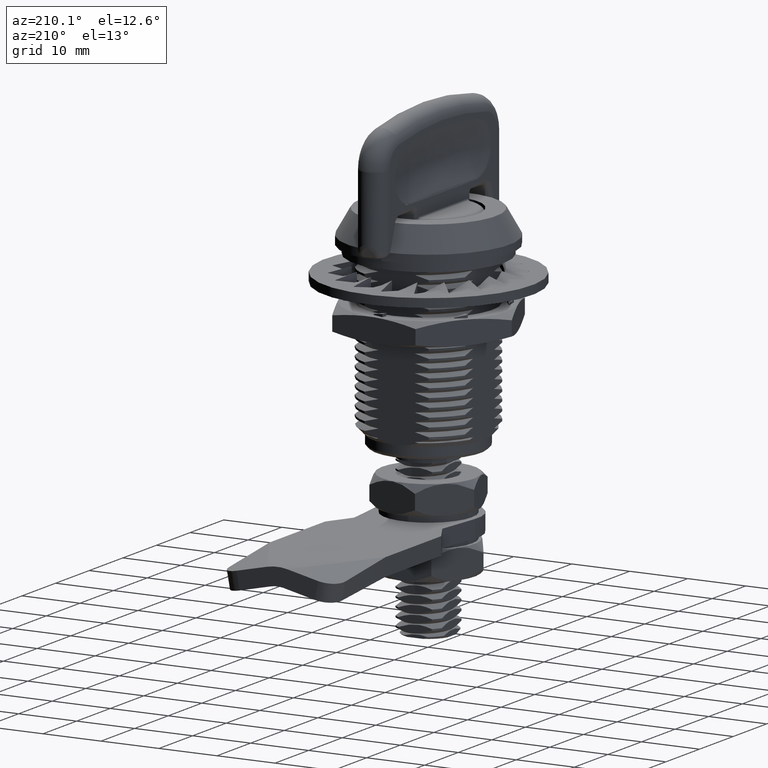
[diagram: clean part render]
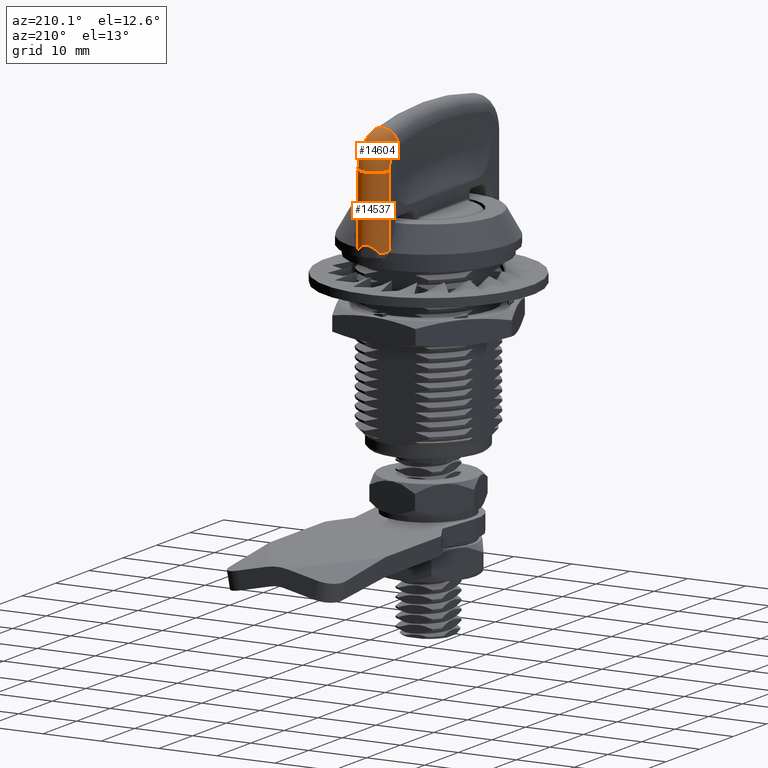
[diagram: same view with one multi-face feature highlighted, each face labeled with its STEP entity id]
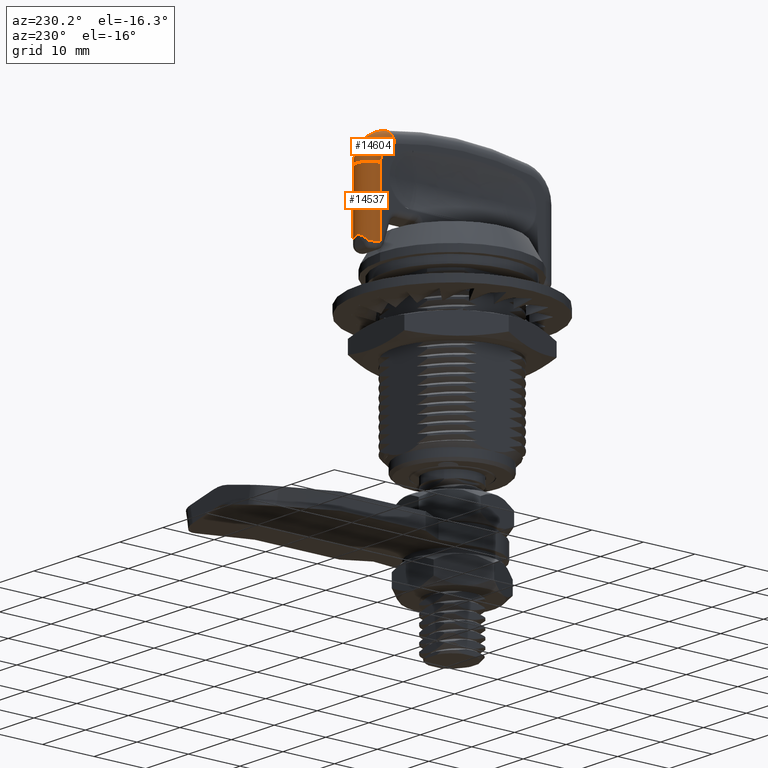
[diagram: same view with one multi-face feature highlighted, each face labeled with its STEP entity id]
A machine part, auxiliary view. The highlighted faces form ONE feature: a constant-radius fillet chain: 2 tangent blend faces with common blend radius 2.5 mm. The faces share edges in the B-rep.
A second angle (auxiliary view) of the same feature is appended — it is thin or edge-on in the first view.
Their STEP definitions:
[1] entity #14537 (Cylinder):
#1203=B_SPLINE_CURVE_WITH_KNOTS('',3,(#64390,#64391,#64392,#64393,#64394,
#64395,#64396),.UNSPECIFIED.,.F.,.F.,(4,1,1,1,4),(0.,0.267466078022516,
0.507587798485736,0.743473486123171,0.999999860373655),.UNSPECIFIED.);
#1205=B_SPLINE_CURVE_WITH_KNOTS('',3,(#64436,#64437,#64438,#64439,#64440,
#64441,#64442,#64443),.UNSPECIFIED.,.F.,.F.,(4,2,2,4),(0.,0.353250011507601,
0.683221391702949,1.),.UNSPECIFIED.);
#1206=B_SPLINE_CURVE_WITH_KNOTS('',3,(#64450,#64451,#64452,#64453,#64454,
#64455,#64456,#64457,#64458,#64459,#64460,#64461,#64462,#64463,#64464,#64465,
#64466,#64467,#64468,#64469,#64470,#64471,#64472,#64473,#64474,#64475,#64476,
#64477,#64478,#64479,#64480,#64481,#64482,#64483,#64484,#64485,#64486,#64487,
#64488,#64489,#64490,#64491,#64492,#64493,#64494,#64495,#64496,#64497,#64498,
#64499,#64500,#64501,#64502,#64503,#64504,#64505,#64506,#64507,#64508,#64509,
#64510,#64511,#64512,#64513,#64514,#64515,#64516,#64517,#64518,#64519,#64520,
#64521,#64522,#64523,#64524,#64525,#64526,#64527,#64528,#64529,#64530,#64531,
#64532,#64533,#64534,#64535,#64536,#64537,#64538,#64539,#64540,#64541,#64542,
#64543,#64544,#64545,#64546,#64547,#64548,#64549,#64550,#64551,#64552,#64553,
#64554,#64555,#64556,#64557),.UNSPECIFIED.,.F.,.F.,(4,2,2,2,2,2,2,2,2,2,
2,2,2,2,2,2,2,2,2,2,2,2,2,2,2,2,2,2,2,2,2,2,2,2,2,2,2,2,2,2,2,2,2,2,2,2,
2,2,2,2,2,2,2,4),(9.15408468364065E-8,0.023589347725002,0.0494026267857934,
0.0598260240815998,0.0802582647346693,0.102759069972841,0.1111111111111,
0.127028875435708,0.154037006365039,0.158223293277651,0.183864705645506,
0.207086906540861,0.20950611801336,0.2222222222222,0.245163361976176,0.266698992011257,
0.286829974445639,0.302671505568516,0.320536830970461,0.3333333333333,0.354119640601923,
0.372788190873707,0.381653037795957,0.398616254622046,0.415178897183282,
0.431496665771749,0.4444444444444,0.449364892352417,0.467357926019317,0.486261513227136,
0.506275635583453,0.519296355281918,0.54006281530764,0.5555555555556,0.579574163328535,
0.595456375305091,0.622871558627128,0.653641368031901,0.6666666666667,0.684048360101475,
0.707480714520556,0.731673585204199,0.757783631865874,0.7777777777778,0.782558108001469,
0.813436217876795,0.849032724989778,0.866781088202546,0.8888888888889,0.914919504198518,
0.936959603227853,0.968479781058255,0.997206507725537,0.999999958888649),
 .UNSPECIFIED.);
#1883=CYLINDRICAL_SURFACE('',#15323,2.5);
#2235=LINE('',#60510,#2914);
#2265=LINE('',#64445,#2944);
#2914=VECTOR('',#16492,12.2602306417664);
#2944=VECTOR('',#16722,12.260231471843);
#3840=FACE_OUTER_BOUND('',#4735,.T.);
#4735=EDGE_LOOP('',(#11290,#11291,#11292,#11293,#11294,#11295,#11296,#11297));
#5374=CIRCLE('',#15324,2.5);
#5375=CIRCLE('',#15325,2.5);
#5376=CIRCLE('',#15326,2.5);
#6100=VERTEX_POINT('',#60507);
#6101=VERTEX_POINT('',#60509);
#6213=VERTEX_POINT('',#64389);
#6215=VERTEX_POINT('',#64434);
#6216=VERTEX_POINT('',#64435);
#6217=VERTEX_POINT('',#64444);
#6218=VERTEX_POINT('',#64447);
#6219=VERTEX_POINT('',#64449);
#7858=EDGE_CURVE('',#6100,#6101,#2235,.T.);
#8030=EDGE_CURVE('',#6213,#6100,#1203,.T.);
#8033=EDGE_CURVE('',#6215,#6216,#1205,.T.);
#8034=EDGE_CURVE('',#6217,#6215,#2265,.T.);
#8035=EDGE_CURVE('',#6217,#6101,#5374,.T.);
#8036=EDGE_CURVE('',#6213,#6218,#5375,.T.);
#8037=EDGE_CURVE('',#6219,#6218,#1206,.T.);
#8038=EDGE_CURVE('',#6219,#6216,#5376,.T.);
#11290=ORIENTED_EDGE('',*,*,#8033,.F.);
#11291=ORIENTED_EDGE('',*,*,#8034,.F.);
#11292=ORIENTED_EDGE('',*,*,#8035,.T.);
#11293=ORIENTED_EDGE('',*,*,#7858,.F.);
#11294=ORIENTED_EDGE('',*,*,#8030,.F.);
#11295=ORIENTED_EDGE('',*,*,#8036,.T.);
#11296=ORIENTED_EDGE('',*,*,#8037,.F.);
#11297=ORIENTED_EDGE('',*,*,#8038,.T.);
#14537=ADVANCED_FACE('',(#3840),#1883,.T.);
#15323=AXIS2_PLACEMENT_3D('',#64433,#16720,#16721);
#15324=AXIS2_PLACEMENT_3D('',#64446,#16723,#16724);
#15325=AXIS2_PLACEMENT_3D('',#64448,#16725,#16726);
#15326=AXIS2_PLACEMENT_3D('',#64558,#16727,#16728);
#16492=DIRECTION('',(6.932877299588E-14,1.,-1.376887484708E-8));
#16720=DIRECTION('center_axis',(0.,1.,0.));
#16721=DIRECTION('ref_axis',(1.,0.,0.));
#16722=DIRECTION('',(2.403324643406E-13,-0.999999999999998,6.02866038983999E-8));
#16723=DIRECTION('center_axis',(0.,-1.,0.));
#16724=DIRECTION('ref_axis',(-1.,0.,1.320530174098E-9));
#16725=DIRECTION('center_axis',(0.,1.,0.));
#16726=DIRECTION('ref_axis',(0.978500863578061,0.,-0.206242721027892));
#16727=DIRECTION('center_axis',(0.,1.,0.));
#16728=DIRECTION('ref_axis',(-0.73137249196487,0.,-0.681978209327172));
#60507=CARTESIAN_POINT('',(2.49999999999924,34.2071972157575,-15.9999999551664));
#60509=CARTESIAN_POINT('',(2.49999999999995,46.4674278575239,-16.0000000038298));
#60510=CARTESIAN_POINT('',(2.499999999999,34.20719713052,-15.99999983885));
#64389=CARTESIAN_POINT('',(2.44625216013355,34.09999977029,-16.5156067969301));
#64390=CARTESIAN_POINT('Ctrl Pts',(2.44625216013336,34.09999954065,-16.5156067969301));
#64391=CARTESIAN_POINT('Ctrl Pts',(2.45653159603408,34.100000666675,-16.4668346166695));
#64392=CARTESIAN_POINT('Ctrl Pts',(2.47320006172738,34.1048919613841,-16.3738947529339));
#64393=CARTESIAN_POINT('Ctrl Pts',(2.48942109526228,34.1257203630037,-16.2409356722502));
#64394=CARTESIAN_POINT('Ctrl Pts',(2.49831290473731,34.1586633015962,-16.1158794679632));
#64395=CARTESIAN_POINT('Ctrl Pts',(2.49999949047634,34.1892023527903,-16.0380830411879));
#64396=CARTESIAN_POINT('Ctrl Pts',(2.49999999999879,34.2071971011366,-15.9999999010355));
#64433=CARTESIAN_POINT('Origin',(0.,-66.25569097812,-16.));
#64434=CARTESIAN_POINT('',(-2.49999999999595,34.2071963875237,-15.9999994998946));
#64435=CARTESIAN_POINT('',(-2.44625755656909,34.0999992101149,-16.515581193153));
#64436=CARTESIAN_POINT('Ctrl Pts',(-2.49999999998963,34.20719529803,-15.99999925867));
#64437=CARTESIAN_POINT('Ctrl Pts',(-2.49999940017764,34.182432171283,-16.0524065855158));
#64438=CARTESIAN_POINT('Ctrl Pts',(-2.49831752914386,34.1616133749237,-16.1095098631786));
#64439=CARTESIAN_POINT('Ctrl Pts',(-2.49046698420624,34.1298803367765,-16.2252184185283));
#64440=CARTESIAN_POINT('Ctrl Pts',(-2.48460130144107,34.1184038130913,-16.2834768236474));
#64441=CARTESIAN_POINT('Ctrl Pts',(-2.46848690339756,34.1036167543794,-16.3998414132646));
#64442=CARTESIAN_POINT('Ctrl Pts',(-2.45842279576721,34.0999980882414,-16.4578606059541));
#64443=CARTESIAN_POINT('Ctrl Pts',(-2.44625755654642,34.09999842031,-16.5155811931634));
#64444=CARTESIAN_POINT('',(-2.5,46.4674278593667,-15.9999999988995));
#64445=CARTESIAN_POINT('',(-2.5,46.46742786977,-15.9999999978));
#64446=CARTESIAN_POINT('Origin',(0.,46.46742785872,-16.));
#64447=CARTESIAN_POINT('',(1.82843176818156,34.0999996874892,-17.7049449460578));
#64448=CARTESIAN_POINT('Origin',(0.,34.1,-16.));
#64449=CARTESIAN_POINT('',(-1.82843188443403,34.0999992651982,-17.7049448213777));
#64450=CARTESIAN_POINT('Ctrl Pts',(-1.82843185312607,34.0999992229563,-17.7049448549657));
#64451=CARTESIAN_POINT('Ctrl Pts',(-1.79618100044585,34.1499256807666,-17.7395315960906));
#64452=CARTESIAN_POINT('Ctrl Pts',(-1.76366082623709,34.1980977243727,-17.7724403714806));
#64453=CARTESIAN_POINT('Ctrl Pts',(-1.69534022832455,34.2950641824103,-17.8380069521786));
#64454=CARTESIAN_POINT('Ctrl Pts',(-1.65951843021595,34.3434884281454,-17.8703482994829));
#64455=CARTESIAN_POINT('Ctrl Pts',(-1.60940719957267,34.4081120174142,-17.9131565192714));
#64456=CARTESIAN_POINT('Ctrl Pts',(-1.59501360813476,34.4263113450516,-17.9251687924651));
#64457=CARTESIAN_POINT('Ctrl Pts',(-1.55252044649863,34.4790053574949,-17.9598467675131));
#64458=CARTESIAN_POINT('Ctrl Pts',(-1.52452928172394,34.5123664175234,-17.9816684629367));
#64459=CARTESIAN_POINT('Ctrl Pts',(-1.46624192175416,34.57909370547,-18.025238062312));
#64460=CARTESIAN_POINT('Ctrl Pts',(-1.43599873678348,34.6121181720915,-18.0467542501261));
#64461=CARTESIAN_POINT('Ctrl Pts',(-1.39519611787389,34.6546136913553,-18.0745135007482));
#64462=CARTESIAN_POINT('Ctrl Pts',(-1.38421800919696,34.6658375263621,-18.081852699031));
#64463=CARTESIAN_POINT('Ctrl Pts',(-1.35254411941864,34.6976274214802,-18.1026750733079));
#64464=CARTESIAN_POINT('Ctrl Pts',(-1.3320111389709,34.7174350918389,-18.1157300007085));
#64465=CARTESIAN_POINT('Ctrl Pts',(-1.27734119916767,34.768332523668,-18.1494259950836));
#64466=CARTESIAN_POINT('Ctrl Pts',(-1.24369324947295,34.7976639858512,-18.1690192448796));
#64467=CARTESIAN_POINT('Ctrl Pts',(-1.20564936017273,34.8289941790397,-18.1900784628377));
#64468=CARTESIAN_POINT('Ctrl Pts',(-1.20056084432676,34.8331456925215,-18.1928718630846));
#64469=CARTESIAN_POINT('Ctrl Pts',(-1.16442394062836,34.8623609436313,-18.2125478590416));
#64470=CARTESIAN_POINT('Ctrl Pts',(-1.13399158145596,34.885558076164,-18.2282667074463));
#64471=CARTESIAN_POINT('Ctrl Pts',(-1.07704368632367,34.9269284044276,-18.2562993719204));
#64472=CARTESIAN_POINT('Ctrl Pts',(-1.05042949139633,34.9453697434607,-18.2687942662791));
#64473=CARTESIAN_POINT('Ctrl Pts',(-1.02141834976795,34.9647329314965,-18.2818224202511));
#64474=CARTESIAN_POINT('Ctrl Pts',(-1.0186848581832,34.9665499753322,-18.2830440396347));
#64475=CARTESIAN_POINT('Ctrl Pts',(-1.00160514578169,34.9778586279533,-18.2906404735326));
#64476=CARTESIAN_POINT('Ctrl Pts',(-0.987352161219896,34.9870976703046,
-18.2968180086156));
#64477=CARTESIAN_POINT('Ctrl Pts',(-0.947567085978325,35.0123838285752,
-18.3136310921625));
#64478=CARTESIAN_POINT('Ctrl Pts',(-0.922235264366391,35.0278310831264,
-18.3238373650671));
#64479=CARTESIAN_POINT('Ctrl Pts',(-0.873073842272901,35.0564983646098,
-18.3427318224241));
#64480=CARTESIAN_POINT('Ctrl Pts',(-0.849247225340689,35.0697976149091,
-18.3514745029414));
#64481=CARTESIAN_POINT('Ctrl Pts',(-0.802570002946643,35.0946135157014,
-18.3677947861684));
#64482=CARTESIAN_POINT('Ctrl Pts',(-0.77975692388344,35.1061902147824,-18.375411182089));
#64483=CARTESIAN_POINT('Ctrl Pts',(-0.738067846212342,35.126244806782,-18.3886454054784));
#64484=CARTESIAN_POINT('Ctrl Pts',(-0.719388139508955,35.1348569487947,
-18.3943429530026));
#64485=CARTESIAN_POINT('Ctrl Pts',(-0.678665834427539,35.1527408509555,
-18.4062248855946));
#64486=CARTESIAN_POINT('Ctrl Pts',(-0.656498743302852,35.1619576482882,
-18.412378911749));
#64487=CARTESIAN_POINT('Ctrl Pts',(-0.617118479499262,35.1771998777772,
-18.422695488902));
#64488=CARTESIAN_POINT('Ctrl Pts',(-0.600283770684613,35.1833882409519,
-18.4269273389296));
#64489=CARTESIAN_POINT('Ctrl Pts',(-0.554852455945195,35.1990661711505,
-18.4378217650391));
#64490=CARTESIAN_POINT('Ctrl Pts',(-0.525666361961723,35.2085718477848,
-18.4443029545451));
#64491=CARTESIAN_POINT('Ctrl Pts',(-0.468563665850607,35.2256838978659,
-18.4558517808036));
#64492=CARTESIAN_POINT('Ctrl Pts',(-0.440821140048129,35.2333845448715,
-18.4609961634294));
#64493=CARTESIAN_POINT('Ctrl Pts',(-0.399029782700153,35.2439014329879,
-18.4679873071041));
#64494=CARTESIAN_POINT('Ctrl Pts',(-0.385440628788132,35.2471596631757,
-18.4701473024276));
#64495=CARTESIAN_POINT('Ctrl Pts',(-0.345500171035854,35.2562371991873,
-18.4761529236113));
#64496=CARTESIAN_POINT('Ctrl Pts',(-0.318831582731665,35.261674221161,-18.4797333043779));
#64497=CARTESIAN_POINT('Ctrl Pts',(-0.265767562333795,35.2712203231542,
-18.4859735181328));
#64498=CARTESIAN_POINT('Ctrl Pts',(-0.23938137998947,35.2753576580271,-18.4886532635768));
#64499=CARTESIAN_POINT('Ctrl Pts',(-0.187104265180545,35.2823548477389,
-18.493124546317));
#64500=CARTESIAN_POINT('Ctrl Pts',(-0.161212243394039,35.2852327094451,
-18.49492894605));
#64501=CARTESIAN_POINT('Ctrl Pts',(-0.115210578669214,35.2893445787364,
-18.497427067538));
#64502=CARTESIAN_POINT('Ctrl Pts',(-0.0950106251459085,35.2907961580241,
-18.4982737944752));
#64503=CARTESIAN_POINT('Ctrl Pts',(-0.0674581182565844,35.2923246715633,
-18.499101242555));
#64504=CARTESIAN_POINT('Ctrl Pts',(-0.0598961334067516,35.2926798824419,
-18.4992937566104));
#64505=CARTESIAN_POINT('Ctrl Pts',(-0.0247987480973837,35.2940287291685,
-18.5000289878349));
#64506=CARTESIAN_POINT('Ctrl Pts',(0.00242366263494375,35.2942153058521,
-18.5001430830288));
#64507=CARTESIAN_POINT('Ctrl Pts',(0.0574934396898767,35.2931161224091,
-18.4994980829042));
#64508=CARTESIAN_POINT('Ctrl Pts',(0.0853034864518224,35.2917550931158,
-18.4986946708747));
#64509=CARTESIAN_POINT('Ctrl Pts',(0.141692704781433,35.2875601289192,-18.4961502039555));
#64510=CARTESIAN_POINT('Ctrl Pts',(0.170222069305409,35.2846441263618,-18.49435683878));
#64511=CARTESIAN_POINT('Ctrl Pts',(0.216515172740494,35.2787279823564,-18.4906738488287));
#64512=CARTESIAN_POINT('Ctrl Pts',(0.234557402678085,35.2761121946883,-18.4890367811121));
#64513=CARTESIAN_POINT('Ctrl Pts',(0.280830592855825,35.2686254661541,-18.4843412365005));
#64514=CARTESIAN_POINT('Ctrl Pts',(0.30874028286663,35.2633406054333,-18.4810180457982));
#64515=CARTESIAN_POINT('Ctrl Pts',(0.356785302238938,35.2530928009986,-18.4744966021578));
#64516=CARTESIAN_POINT('Ctrl Pts',(0.377094237487914,35.2483878604451,-18.471480484498));
#64517=CARTESIAN_POINT('Ctrl Pts',(0.428440516527212,35.2356303974902,-18.4632170440243));
#64518=CARTESIAN_POINT('Ctrl Pts',(0.459117491573031,35.2271978834323,-18.4576715000671));
#64519=CARTESIAN_POINT('Ctrl Pts',(0.509014664329109,35.2122620260282,-18.447716127484));
#64520=CARTESIAN_POINT('Ctrl Pts',(0.528594500354547,35.2060734609664,-18.4435583639547));
#64521=CARTESIAN_POINT('Ctrl Pts',(0.581097822988422,35.1886522947072,-18.4317660762689));
#64522=CARTESIAN_POINT('Ctrl Pts',(0.613387782215303,35.1770184383344,-18.4237995186286));
#64523=CARTESIAN_POINT('Ctrl Pts',(0.679792466338751,35.1512172686665,-18.4060763127463));
#64524=CARTESIAN_POINT('Ctrl Pts',(0.713645932756461,35.1369144596652,-18.3962195995284));
#64525=CARTESIAN_POINT('Ctrl Pts',(0.759890690107569,35.1158467651029,-18.3817585531907));
#64526=CARTESIAN_POINT('Ctrl Pts',(0.773400123625896,35.1094919854226,-18.3774034786779));
#64527=CARTESIAN_POINT('Ctrl Pts',(0.804347222574965,35.094481492229,-18.3671444587181));
#64528=CARTESIAN_POINT('Ctrl Pts',(0.82155466042169,35.0857231696296,-18.361221814513));
#64529=CARTESIAN_POINT('Ctrl Pts',(0.861158239387066,35.0647431348166,-18.3471235568746));
#64530=CARTESIAN_POINT('Ctrl Pts',(0.883276655463533,35.0523780900737,-18.3388821565314));
#64531=CARTESIAN_POINT('Ctrl Pts',(0.927603120514974,35.0264122398285,-18.3216666323522));
#64532=CARTESIAN_POINT('Ctrl Pts',(0.949790874082752,35.0127838430484,-18.3126772062773));
#64533=CARTESIAN_POINT('Ctrl Pts',(0.995869250404119,34.9832485500978,-18.2932331612051));
#64534=CARTESIAN_POINT('Ctrl Pts',(1.01975585566836,34.9672462627367,-18.282719133173));
#64535=CARTESIAN_POINT('Ctrl Pts',(1.06246687280534,34.937430998174,-18.263090738545));
#64536=CARTESIAN_POINT('Ctrl Pts',(1.08116538008045,34.9239822497079,-18.254224785491));
#64537=CARTESIAN_POINT('Ctrl Pts',(1.10471487311692,34.9065457456286,-18.2426838064493));
#64538=CARTESIAN_POINT('Ctrl Pts',(1.10927637644115,34.9031478702894,-18.2404312275152));
#64539=CARTESIAN_POINT('Ctrl Pts',(1.14343581583212,34.8775426335243,-18.223431182697));
#64540=CARTESIAN_POINT('Ctrl Pts',(1.17376636730888,34.8539205150853,-18.2076074495422));
#64541=CARTESIAN_POINT('Ctrl Pts',(1.24067386800869,34.7990590663742,-18.1708063874095));
#64542=CARTESIAN_POINT('Ctrl Pts',(1.27749592319253,34.7672053675987,-18.1494123955731));
#64543=CARTESIAN_POINT('Ctrl Pts',(1.33405438412953,34.7148437740445,-18.1144239200618));
#64544=CARTESIAN_POINT('Ctrl Pts',(1.35309943543659,34.6966557044825,-18.1022970521412));
#64545=CARTESIAN_POINT('Ctrl Pts',(1.39635165252135,34.6539298643292,-18.0738914912097));
#64546=CARTESIAN_POINT('Ctrl Pts',(1.42067846586991,34.6289299354963,-18.0573239671781));
#64547=CARTESIAN_POINT('Ctrl Pts',(1.47425139280245,34.5713399630714,-18.0193670610793));
#64548=CARTESIAN_POINT('Ctrl Pts',(1.5036465076745,34.5381911644486,-17.9976131379358));
#64549=CARTESIAN_POINT('Ctrl Pts',(1.55843680567866,34.4734067605801,-17.9550668318873));
#64550=CARTESIAN_POINT('Ctrl Pts',(1.58375487417878,34.4423184256584,-17.9346383841793));
#64551=CARTESIAN_POINT('Ctrl Pts',(1.64558141986066,34.3635231240541,-17.8826370276725));
#64552=CARTESIAN_POINT('Ctrl Pts',(1.68221919399882,34.3144193254799,-17.8500492584588));
#64553=CARTESIAN_POINT('Ctrl Pts',(1.75221997525557,34.2156073981649,-17.7837707111269));
#64554=CARTESIAN_POINT('Ctrl Pts',(1.78558635204139,34.1663389983558,-17.7504339882659));
#64555=CARTESIAN_POINT('Ctrl Pts',(1.82198563811949,34.1100369916438,-17.7118383219634));
#64556=CARTESIAN_POINT('Ctrl Pts',(1.82520968263892,34.105027942563,-17.7084004027732));
#64557=CARTESIAN_POINT('Ctrl Pts',(1.82843175217608,34.0999996654341,-17.7049449632274));
#64558=CARTESIAN_POINT('Origin',(0.,34.1,-16.));
[2] entity #14604 (Torus):
#76=TOROIDAL_SURFACE('',#15436,3.5,2.5);
#3907=FACE_OUTER_BOUND('',#4803,.T.);
#4803=EDGE_LOOP('',(#11584,#11585,#11586,#11587));
#5320=CIRCLE('',#15224,3.5);
#5374=CIRCLE('',#15324,2.5);
#5386=CIRCLE('',#15337,3.5);
#5447=CIRCLE('',#15435,2.5);
#6101=VERTEX_POINT('',#60509);
#6102=VERTEX_POINT('',#60511);
#6217=VERTEX_POINT('',#64444);
#6231=VERTEX_POINT('',#64645);
#7859=EDGE_CURVE('',#6102,#6101,#5320,.T.);
#8035=EDGE_CURVE('',#6217,#6101,#5374,.T.);
#8052=EDGE_CURVE('',#6217,#6231,#5386,.T.);
#8169=EDGE_CURVE('',#6231,#6102,#5447,.T.);
#11584=ORIENTED_EDGE('',*,*,#8052,.T.);
#11585=ORIENTED_EDGE('',*,*,#8169,.T.);
#11586=ORIENTED_EDGE('',*,*,#7859,.T.);
#11587=ORIENTED_EDGE('',*,*,#8035,.F.);
#14604=ADVANCED_FACE('',(#3907),#76,.T.);
#15224=AXIS2_PLACEMENT_3D('',#60512,#16493,#16494);
#15324=AXIS2_PLACEMENT_3D('',#64446,#16723,#16724);
#15337=AXIS2_PLACEMENT_3D('',#64647,#16752,#16753);
#15435=AXIS2_PLACEMENT_3D('',#67634,#16967,#16968);
#15436=AXIS2_PLACEMENT_3D('',#67635,#16969,#16970);
#16493=DIRECTION('center_axis',(-1.,0.,0.));
#16494=DIRECTION('ref_axis',(0.,0.980741060294978,-0.195312499987796));
#16723=DIRECTION('center_axis',(0.,-1.,0.));
#16724=DIRECTION('ref_axis',(-1.,0.,1.320530174098E-9));
#16752=DIRECTION('center_axis',(1.,0.,0.));
#16753=DIRECTION('ref_axis',(0.,9.473500840938E-9,-1.));
#16967=DIRECTION('center_axis',(0.,-0.195312500000009,-0.980741060292546));
#16968=DIRECTION('ref_axis',(0.,0.980741060292546,-0.195312500000009));
#16969=DIRECTION('center_axis',(1.,0.,0.));
#16970=DIRECTION('ref_axis',(0.,-0.01789700432611,-0.999839835791789));
#60509=CARTESIAN_POINT('',(2.49999999999995,46.4674278575239,-16.0000000038298));
#60511=CARTESIAN_POINT('',(2.5,49.90002156976,-13.18359374996));
#60512=CARTESIAN_POINT('Origin',(2.5,46.46742785872,-12.5));
#64444=CARTESIAN_POINT('',(-2.5,46.4674278593667,-15.9999999988995));
#64446=CARTESIAN_POINT('Origin',(0.,46.46742785872,-16.));
#64645=CARTESIAN_POINT('',(-2.5,49.90002156975,-13.18359374996));
#64647=CARTESIAN_POINT('Origin',(-2.5,46.46742785872,-12.5));
#67634=CARTESIAN_POINT('Origin',(0.,49.90002156975,-13.18359375));
#67635=CARTESIAN_POINT('Origin',(0.,46.46742785872,-12.5));